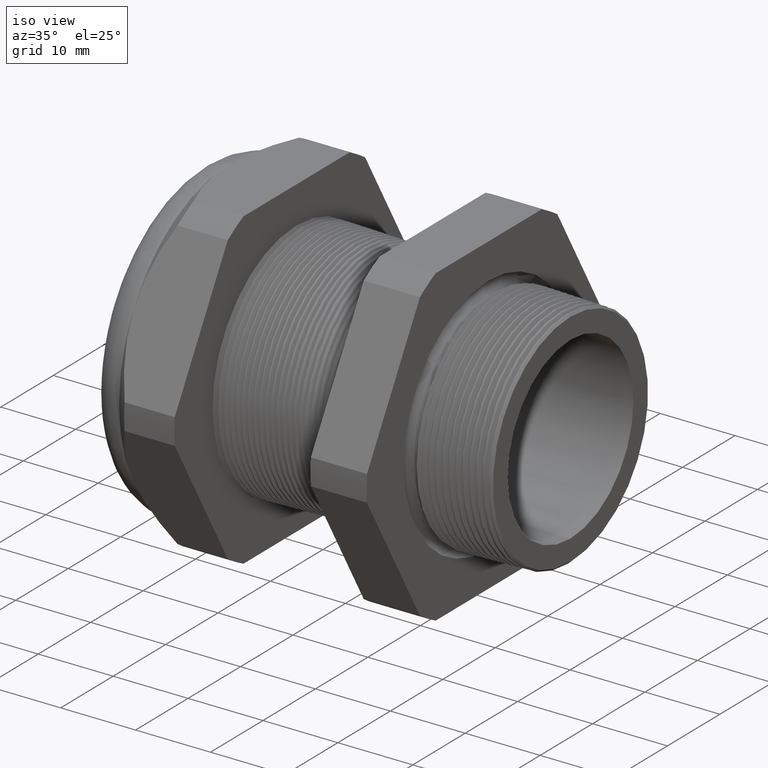
[diagram: clean part render]
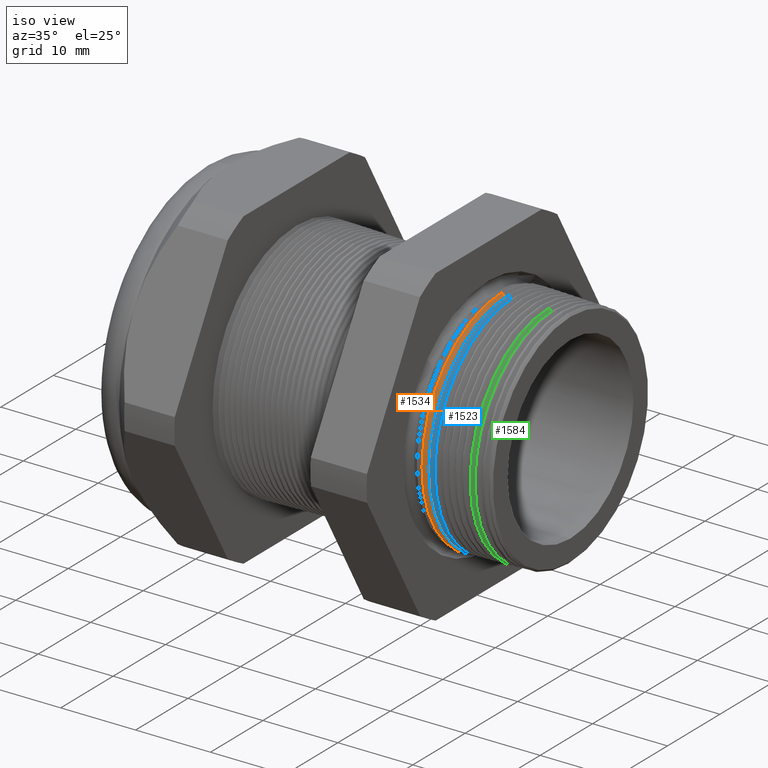
[diagram: same view with three faces highlighted in distinct colors, each labeled with its STEP entity id]
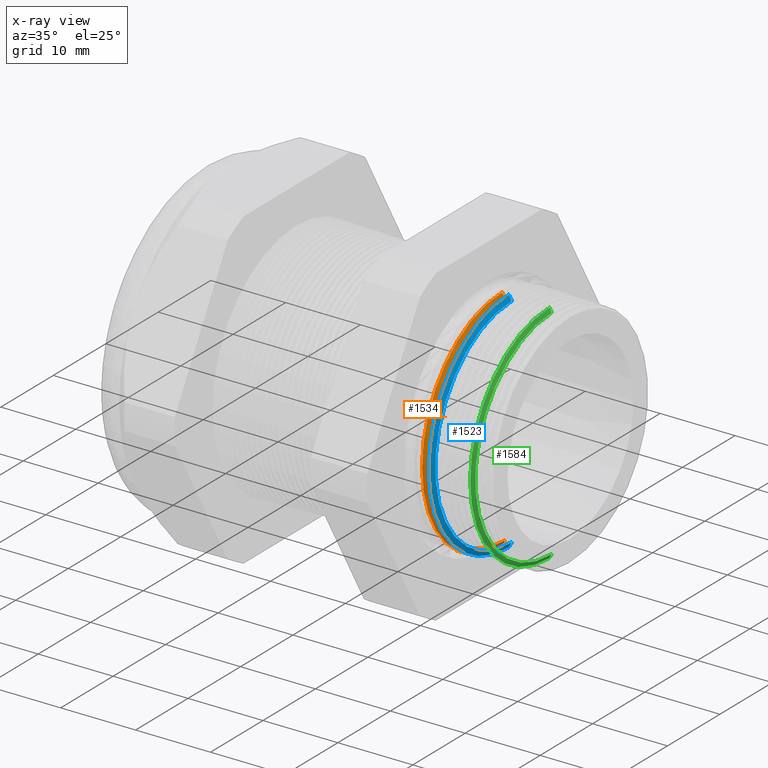
[diagram: x-ray of the same camera — body ghosted, the three highlighted faces saturated]
A machine part, iso view with three faces highlighted in distinct colors.
The next image is the same camera in x-ray (body ghosted, the three faces saturated) — at least one of them is partly hidden behind the body in this view.
Their STEP definitions:

[orange] entity #1534 — the highlighted conical surface has half-angle 61.5 deg.
#1514 = EDGE_CURVE ( 'NONE', #1694, #1689, #4966, .T. ) ;
#1515 = ORIENTED_EDGE ( 'NONE', *, *, #1691, .T. ) ;
#1516 = ORIENTED_EDGE ( 'NONE', *, *, #4163, .T. ) ;
#1534 = ADVANCED_FACE ( 'NONE', ( #5001 ), #5000, .T. ) ;
#1535 = EDGE_LOOP ( 'NONE', ( #1536, #1537, #1515, #1516 ) ) ;
#1536 = ORIENTED_EDGE ( 'NONE', *, *, #1663, .F. ) ;
#1537 = ORIENTED_EDGE ( 'NONE', *, *, #1514, .F. ) ;
#1663 = EDGE_CURVE ( 'NONE', #1689, #1664, #5163, .T. ) ;
#1664 = VERTEX_POINT ( 'NONE', #5159 ) ;
#1667 = VERTEX_POINT ( 'NONE', #5153 ) ;
#1689 = VERTEX_POINT ( 'NONE', #5239 ) ;
#1691 = EDGE_CURVE ( 'NONE', #1694, #1667, #5238, .T. ) ;
#1694 = VERTEX_POINT ( 'NONE', #5228 ) ;
#4163 = EDGE_CURVE ( 'NONE', #1667, #1664, #6549, .T. ) ;
#4959 = DIRECTION ( 'NONE',  ( 1.000000000000000000, 0.0000000000000000000, 0.0000000000000000000 ) ) ;
#4960 = CARTESIAN_POINT ( 'NONE',  ( -0.2234707356790750800, 0.0000000000000000000, 0.0000000000000000000 ) ) ;
#4961 = AXIS2_PLACEMENT_3D ( 'NONE', #4960, #4959, #5021 ) ;
#4966 = CIRCLE ( 'NONE', #4961, 0.5731008538869457600 ) ;
#4996 = DIRECTION ( 'NONE',  ( 0.0000000000000000000, 0.0000000000000000000, 1.000000000000000000 ) ) ;
#4997 = DIRECTION ( 'NONE',  ( -1.000000000000000000, 0.0000000000000000000, 0.0000000000000000000 ) ) ;
#4998 = AXIS2_PLACEMENT_3D ( 'NONE', #5005, #4997, #4996 ) ;
#5000 = CONICAL_SURFACE ( 'NONE', #4998, 0.6035439716807757800, 1.073377489976501800 ) ;
#5001 = FACE_OUTER_BOUND ( 'NONE', #1535, .T. ) ;
#5005 = CARTESIAN_POINT ( 'NONE',  ( -0.2399999999999998200, 0.0000000000000000000, 0.0000000000000000000 ) ) ;
#5021 = DIRECTION ( 'NONE',  ( 0.0000000000000000000, 0.0000000000000000000, -1.000000000000000000 ) ) ;
#5153 = CARTESIAN_POINT ( 'NONE',  ( -0.2389904000387094200, 0.0000000000000000000, 0.6016845198655306200 ) ) ;
#5159 = CARTESIAN_POINT ( 'NONE',  ( -0.2389904000387094200, 7.368820190984700500E-017, -0.6016845198655306200 ) ) ;
#5160 = DIRECTION ( 'NONE',  ( -0.4771587602596179000, 1.076240564057388100E-016, -0.8788171126619600500 ) ) ;
#5161 = VECTOR ( 'NONE', #5160, 39.37007874015748900 ) ;
#5162 = CARTESIAN_POINT ( 'NONE',  ( -0.2399999999999998200, 7.391281930635429700E-017, -0.6035439716807757800 ) ) ;
#5163 = LINE ( 'NONE', #5162, #5161 ) ;
#5228 = CARTESIAN_POINT ( 'NONE',  ( -0.2234707356790750800, 0.0000000000000000000, 0.5731008538869457600 ) ) ;
#5235 = DIRECTION ( 'NONE',  ( -0.4771587602596179000, 0.0000000000000000000, 0.8788171126619600500 ) ) ;
#5236 = VECTOR ( 'NONE', #5235, 39.37007874015748900 ) ;
#5237 = CARTESIAN_POINT ( 'NONE',  ( -0.2399999999999998200, 0.0000000000000000000, 0.6035439716807757800 ) ) ;
#5238 = LINE ( 'NONE', #5237, #5236 ) ;
#5239 = CARTESIAN_POINT ( 'NONE',  ( -0.2234707356790750800, 7.193485738255486200E-017, -0.5731008538869457600 ) ) ;
#6545 = DIRECTION ( 'NONE',  ( 0.0000000000000000000, 0.0000000000000000000, 1.000000000000000000 ) ) ;
#6546 = DIRECTION ( 'NONE',  ( 1.000000000000000000, 0.0000000000000000000, 0.0000000000000000000 ) ) ;
#6547 = CARTESIAN_POINT ( 'NONE',  ( -0.2389904000387094200, 0.0000000000000000000, 0.0000000000000000000 ) ) ;
#6548 = AXIS2_PLACEMENT_3D ( 'NONE', #6547, #6546, #6545 ) ;
#6549 = CIRCLE ( 'NONE', #6548, 0.6016845198655306200 ) ;

[blue] entity #1523 — the highlighted conical surface has half-angle 61.5 deg.
#475 = VERTEX_POINT ( 'NONE', #2828 ) ;
#525 = VERTEX_POINT ( 'NONE', #2913 ) ;
#1523 = ADVANCED_FACE ( 'NONE', ( #5018 ), #5013, .T. ) ;
#1524 = EDGE_LOOP ( 'NONE', ( #1525, #1578, #1580, #1581 ) ) ;
#1525 = ORIENTED_EDGE ( 'NONE', *, *, #1672, .F. ) ;
#1578 = ORIENTED_EDGE ( 'NONE', *, *, #1579, .F. ) ;
#1579 = EDGE_CURVE ( 'NONE', #525, #475, #5088, .T. ) ;
#1580 = ORIENTED_EDGE ( 'NONE', *, *, #1734, .T. ) ;
#1581 = ORIENTED_EDGE ( 'NONE', *, *, #4041, .T. ) ;
#1672 = EDGE_CURVE ( 'NONE', #475, #1673, #5207, .T. ) ;
#1673 = VERTEX_POINT ( 'NONE', #5203 ) ;
#1674 = VERTEX_POINT ( 'NONE', #5202 ) ;
#1734 = EDGE_CURVE ( 'NONE', #525, #1674, #5335, .T. ) ;
#2828 = CARTESIAN_POINT ( 'NONE',  ( -0.1884707356790750700, 7.187792808971215600E-017, -0.5731008538869457600 ) ) ;
#2913 = CARTESIAN_POINT ( 'NONE',  ( -0.1884707356790750700, 0.0000000000000000000, 0.5731008538869457600 ) ) ;
#4041 = EDGE_CURVE ( 'NONE', #1674, #1673, #6286, .T. ) ;
#5008 = DIRECTION ( 'NONE',  ( 0.0000000000000000000, 0.0000000000000000000, 1.000000000000000000 ) ) ;
#5009 = DIRECTION ( 'NONE',  ( -1.000000000000000000, 0.0000000000000000000, 0.0000000000000000000 ) ) ;
#5010 = CARTESIAN_POINT ( 'NONE',  ( -0.2049999999999998200, 0.0000000000000000000, 0.0000000000000000000 ) ) ;
#5011 = AXIS2_PLACEMENT_3D ( 'NONE', #5010, #5009, #5008 ) ;
#5013 = CONICAL_SURFACE ( 'NONE', #5011, 0.6035439716807757800, 1.073377489976501800 ) ;
#5018 = FACE_OUTER_BOUND ( 'NONE', #1524, .T. ) ;
#5079 = DIRECTION ( 'NONE',  ( 0.0000000000000000000, 0.0000000000000000000, -1.000000000000000000 ) ) ;
#5080 = DIRECTION ( 'NONE',  ( 1.000000000000000000, 0.0000000000000000000, 0.0000000000000000000 ) ) ;
#5081 = CARTESIAN_POINT ( 'NONE',  ( -0.1884707356790750700, 0.0000000000000000000, 0.0000000000000000000 ) ) ;
#5082 = AXIS2_PLACEMENT_3D ( 'NONE', #5081, #5080, #5079 ) ;
#5088 = CIRCLE ( 'NONE', #5082, 0.5731008538869457600 ) ;
#5202 = CARTESIAN_POINT ( 'NONE',  ( -0.2034856000580642400, 0.0000000000000000000, 0.6007547939579081000 ) ) ;
#5203 = CARTESIAN_POINT ( 'NONE',  ( -0.2034856000580642400, 7.357603905258391000E-017, -0.6007547939579081000 ) ) ;
#5204 = DIRECTION ( 'NONE',  ( -0.4771587602596179000, 1.076240564057388100E-016, -0.8788171126619600500 ) ) ;
#5205 = VECTOR ( 'NONE', #5204, 39.37007874015748900 ) ;
#5206 = CARTESIAN_POINT ( 'NONE',  ( -0.2049999999999998200, 7.391281930635429700E-017, -0.6035439716807757800 ) ) ;
#5207 = LINE ( 'NONE', #5206, #5205 ) ;
#5332 = DIRECTION ( 'NONE',  ( -0.4771587602596179000, 0.0000000000000000000, 0.8788171126619600500 ) ) ;
#5333 = VECTOR ( 'NONE', #5332, 39.37007874015748900 ) ;
#5334 = CARTESIAN_POINT ( 'NONE',  ( -0.2049999999999998200, 0.0000000000000000000, 0.6035439716807757800 ) ) ;
#5335 = LINE ( 'NONE', #5334, #5333 ) ;
#6282 = DIRECTION ( 'NONE',  ( 0.0000000000000000000, 0.0000000000000000000, 1.000000000000000000 ) ) ;
#6283 = DIRECTION ( 'NONE',  ( 1.000000000000000000, 0.0000000000000000000, 0.0000000000000000000 ) ) ;
#6284 = CARTESIAN_POINT ( 'NONE',  ( -0.2034856000580642400, 0.0000000000000000000, 0.0000000000000000000 ) ) ;
#6285 = AXIS2_PLACEMENT_3D ( 'NONE', #6284, #6283, #6282 ) ;
#6286 = CIRCLE ( 'NONE', #6285, 0.6007547939579081000 ) ;

[green] entity #1584 — the highlighted conical surface has half-angle 61.5 deg.
#347 = VERTEX_POINT ( 'NONE', #2619 ) ;
#349 = VERTEX_POINT ( 'NONE', #2618 ) ;
#368 = VERTEX_POINT ( 'NONE', #2646 ) ;
#372 = EDGE_CURVE ( 'NONE', #349, #368, #2638, .T. ) ;
#373 = VERTEX_POINT ( 'NONE', #2630 ) ;
#375 = EDGE_CURVE ( 'NONE', #347, #373, #2629, .T. ) ;
#1584 = ADVANCED_FACE ( 'NONE', ( #5076 ), #5071, .T. ) ;
#1585 = EDGE_LOOP ( 'NONE', ( #1586, #1587, #1589, #1590 ) ) ;
#1586 = ORIENTED_EDGE ( 'NONE', *, *, #375, .F. ) ;
#1587 = ORIENTED_EDGE ( 'NONE', *, *, #1588, .F. ) ;
#1588 = EDGE_CURVE ( 'NONE', #349, #347, #5065, .T. ) ;
#1589 = ORIENTED_EDGE ( 'NONE', *, *, #372, .T. ) ;
#1590 = ORIENTED_EDGE ( 'NONE', *, *, #7273, .T. ) ;
#2618 = CARTESIAN_POINT ( 'NONE',  ( 0.02152926432092497700, 0.0000000000000000000, 0.5731008538869457600 ) ) ;
#2619 = CARTESIAN_POINT ( 'NONE',  ( 0.02152926432092497700, 7.153635233265583300E-017, -0.5731008538869457600 ) ) ;
#2626 = DIRECTION ( 'NONE',  ( -0.4771587602596179000, 1.076240564057388100E-016, -0.8788171126619600500 ) ) ;
#2627 = VECTOR ( 'NONE', #2626, 39.37007874015748900 ) ;
#2628 = CARTESIAN_POINT ( 'NONE',  ( 0.005000000000000219500, 7.391281930635429700E-017, -0.6035439716807757800 ) ) ;
#2629 = LINE ( 'NONE', #2628, #2627 ) ;
#2630 = CARTESIAN_POINT ( 'NONE',  ( 0.009543199825807155800, 7.290306190900508400E-017, -0.5951764385121725000 ) ) ;
#2631 = DIRECTION ( 'NONE',  ( -0.4771587602596179000, 0.0000000000000000000, 0.8788171126619600500 ) ) ;
#2632 = VECTOR ( 'NONE', #2631, 39.37007874015748900 ) ;
#2633 = CARTESIAN_POINT ( 'NONE',  ( 0.005000000000000219500, 0.0000000000000000000, 0.6035439716807757800 ) ) ;
#2638 = LINE ( 'NONE', #2633, #2632 ) ;
#2646 = CARTESIAN_POINT ( 'NONE',  ( 0.009543199825807155800, 0.0000000000000000000, 0.5951764385121725000 ) ) ;
#5062 = DIRECTION ( 'NONE',  ( 0.0000000000000000000, 0.0000000000000000000, -1.000000000000000000 ) ) ;
#5063 = DIRECTION ( 'NONE',  ( 1.000000000000000000, 0.0000000000000000000, 0.0000000000000000000 ) ) ;
#5064 = AXIS2_PLACEMENT_3D ( 'NONE', #5070, #5063, #5062 ) ;
#5065 = CIRCLE ( 'NONE', #5064, 0.5731008538869457600 ) ;
#5066 = DIRECTION ( 'NONE',  ( 0.0000000000000000000, 0.0000000000000000000, 1.000000000000000000 ) ) ;
#5067 = DIRECTION ( 'NONE',  ( -1.000000000000000000, 0.0000000000000000000, 0.0000000000000000000 ) ) ;
#5068 = CARTESIAN_POINT ( 'NONE',  ( 0.005000000000000219500, 0.0000000000000000000, 0.0000000000000000000 ) ) ;
#5069 = AXIS2_PLACEMENT_3D ( 'NONE', #5068, #5067, #5066 ) ;
#5070 = CARTESIAN_POINT ( 'NONE',  ( 0.02152926432092497700, 0.0000000000000000000, 0.0000000000000000000 ) ) ;
#5071 = CONICAL_SURFACE ( 'NONE', #5069, 0.6035439716807757800, 1.073377489976501800 ) ;
#5076 = FACE_OUTER_BOUND ( 'NONE', #1585, .T. ) ;
#6757 = DIRECTION ( 'NONE',  ( 0.0000000000000000000, 0.0000000000000000000, 1.000000000000000000 ) ) ;
#6758 = DIRECTION ( 'NONE',  ( 1.000000000000000000, 0.0000000000000000000, 0.0000000000000000000 ) ) ;
#6759 = CARTESIAN_POINT ( 'NONE',  ( 0.009543199825807155800, 0.0000000000000000000, 0.0000000000000000000 ) ) ;
#6760 = AXIS2_PLACEMENT_3D ( 'NONE', #6759, #6758, #6757 ) ;
#6761 = CIRCLE ( 'NONE', #6760, 0.5951764385121725000 ) ;
#7273 = EDGE_CURVE ( 'NONE', #368, #373, #6761, .T. ) ;